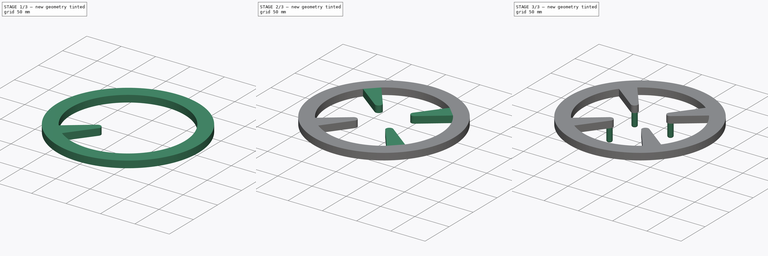
[diagram: build sequence overview — one tinted view per stage of 3, left to right]
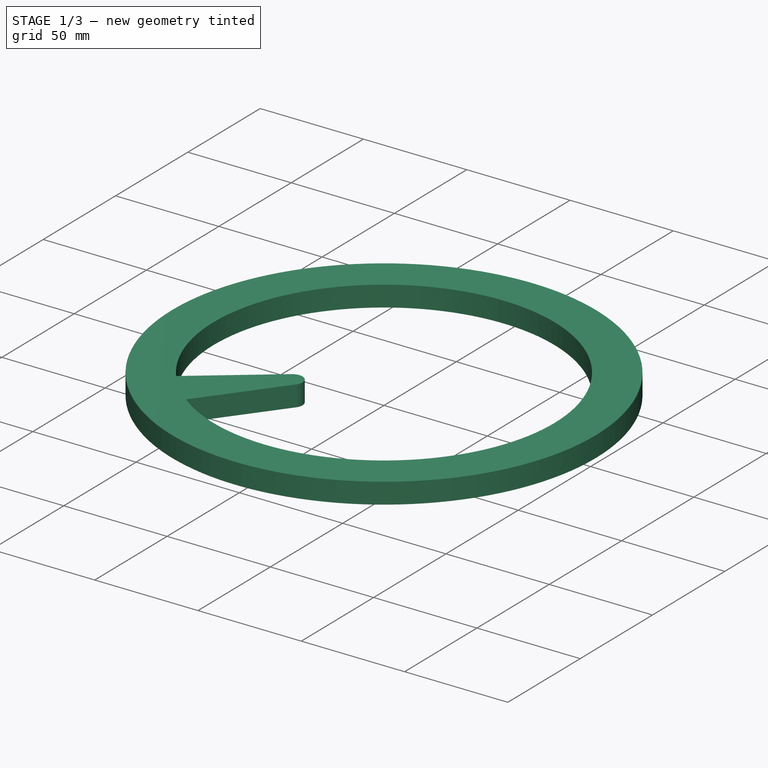
[diagram: stage 1 of 3 — iso view after this stage's code; geometry added in this stage tinted green]
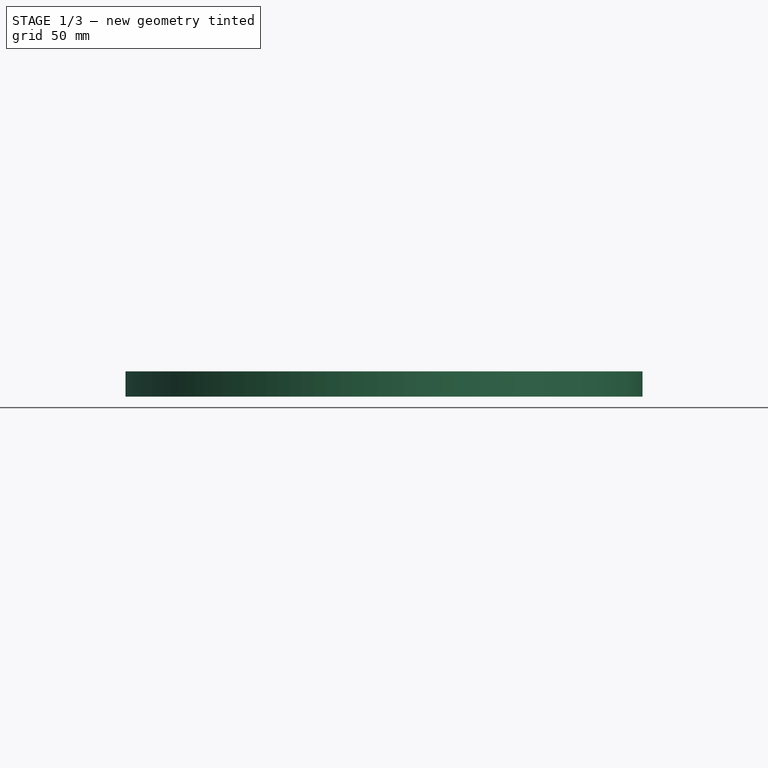
[diagram: stage 1 of 3 — front view after this stage's code; geometry added in this stage tinted green]
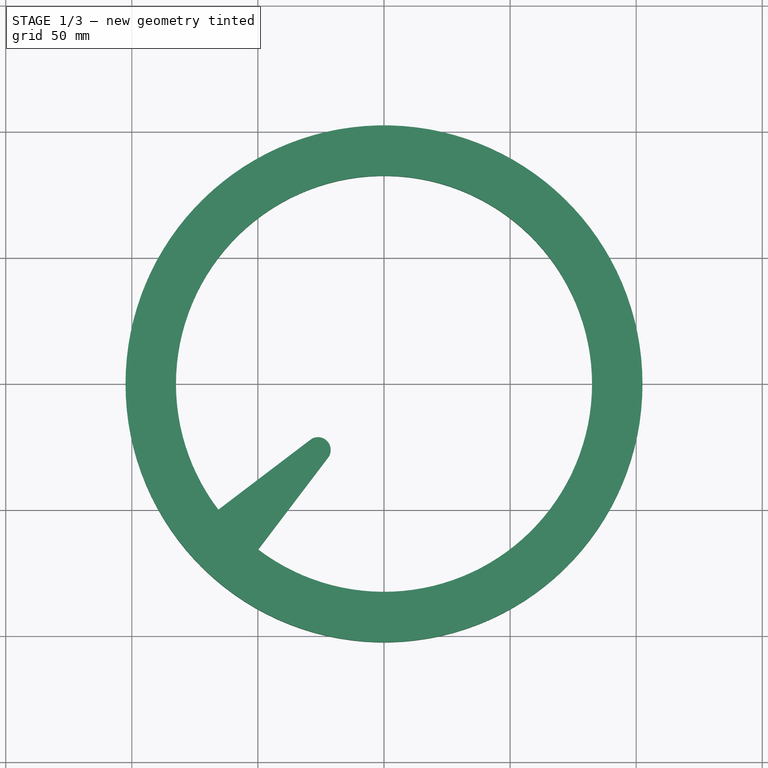
[diagram: stage 1 of 3 — top view after this stage's code; geometry added in this stage tinted green]
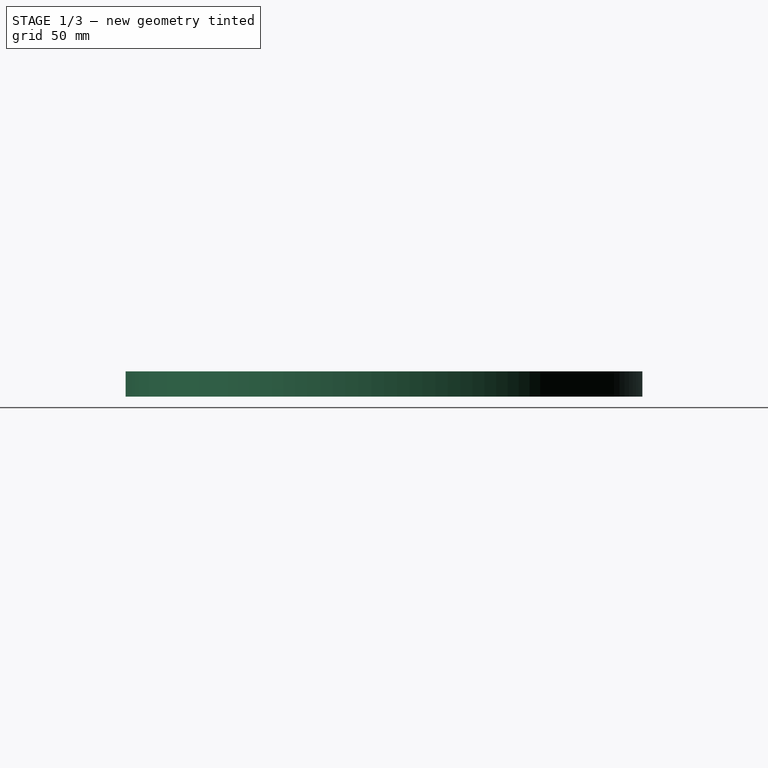
[diagram: stage 1 of 3 — right view after this stage's code; geometry added in this stage tinted green]
FCSTD DOCUMENT  (FreeCAD 1.0R39319 (Git))
Label: Unnamed
License: All rights reserved
LicenseURL: https://en.wikipedia.org/wiki/All_rights_reserved
objects: Sketcher::SketchObject×3, PartDesign::Pad×3, PartDesign::PolarPattern×2, PartDesign::Fillet×1, PartDesign::Body×1
note: 23 computed .brp shape members not serialized (recipe doc carries the construction recipe); baked Part::Feature solids carry a one-line shape summary decoded from their .brp

FEATURE [Sketcher::SketchObject] Sketch
  ArcFitTolerance = 1e-06
  AttachmentSupport = -> [XY_Plane]
  FullyConstrained = false
  MakeInternals = false
  MapMode = 5
  sketch-geometry (14):
    g0: Circle [constr] CenterX=0 CenterY=0 CenterZ=0 NormalX=0 NormalY=0 NormalZ=1 AngleXU=0 Radius=30
    g1: LineSegment [constr] StartX=0 StartY=30 StartZ=0 EndX=0 EndY=80 EndZ=0
    g2: LineSegment [constr] StartX=0 StartY=-30 StartZ=0 EndX=0 EndY=-80 EndZ=0
    g3: Circle CenterX=0 CenterY=0 CenterZ=0 NormalX=0 NormalY=0 NormalZ=1 AngleXU=0 Radius=82.5
    g4: Circle CenterX=0 CenterY=0 CenterZ=0 NormalX=0 NormalY=0 NormalZ=1 AngleXU=0 Radius=102.5
    g5: Circle [constr] CenterX=-26.163 CenterY=26.163 CenterZ=0 NormalX=0 NormalY=0 NormalZ=1 AngleXU=0 Radius=5
    g6: Circle [constr] CenterX=26.163 CenterY=26.163 CenterZ=0 NormalX=0 NormalY=0 NormalZ=1 AngleXU=0 Radius=5
    g7: Circle [constr] CenterX=26.163 CenterY=-26.163 CenterZ=0 NormalX=0 NormalY=0 NormalZ=1 AngleXU=0 Radius=5
    g8: Circle [constr] CenterX=-26.163 CenterY=-26.163 CenterZ=0 NormalX=0 NormalY=0 NormalZ=1 AngleXU=0 Radius=5
    g9: LineSegment [constr] StartX=0 StartY=0 StartZ=0 EndX=85.8181 EndY=85.8181 EndZ=0
    g10: LineSegment [constr] StartX=0 StartY=0 StartZ=0 EndX=-65.6845 EndY=49.9179 EndZ=0
    g11: LineSegment [constr] StartX=0 StartY=0 StartZ=0 EndX=-49.9179 EndY=65.6845 EndZ=0
    g12: GeomPoint [constr] X=21.2132 Y=21.2132 Z=0
    g13: GeomPoint [constr] X=22.6274 Y=22.6274 Z=0
  constraints (35):
    c: Diameter(g0) = 60
    c: Coincident(g0,g-1)
    c: Distance(g1) = 50
    c: PointOnObject(g1,g0)
    c: PointOnObject(g1,g-2)
    c: Vertical(g1)
    c: Distance(g2) = 50
    c: PointOnObject(g2,g0)
    c: PointOnObject(g2,g-2)
    c: Vertical(g2)
    c: Diameter(g3) = 165
    c: Coincident(g3,g0)
    c: Diameter(g4) = 205
    c: Coincident(g4,g0)
    c: Diameter(g5) = 10
    c: Diameter(g6) = 10
    c: Diameter(g7) = 10
    c: Diameter(g8) = 10
    c: Coincident(g9,g0)
    c: Angle(g-1,g9) = 0.785398
    c: PointOnObject(g6,g9)
    c: Symmetric(g7,g8,g2)
    c: Symmetric(g5,g6,g1)
    c: Symmetric(g7,g6,g-1)
    c: Coincident(g10,g0)
    c: PointOnObject(g10,g3)
    c: Coincident(g11,g0)
    c: PointOnObject(g11,g3)
    c: PointOnObject(g12,g0)
    c: PointOnObject(g13,g6)
    c: PointOnObject(g13,g9)
    c: PointOnObject(g12,g9)
    c: Distance(g13,g12) = 2
    c: Tangent(g11,g5)
    c: Tangent(g10,g5)
FEATURE [PartDesign::Pad] Pad
  Direction = (0,0,1)
  Length = 10
  Length2 = 10
  Profile = -> Sketch
  ReferenceAxis = -> Sketch [N_Axis]
  Refine = true
  Suppressed = false
  Type = 0
FEATURE [Sketcher::SketchObject] Sketch001
  ArcFitTolerance = 1e-06
  AttachmentSupport = -> [Pad]
  ExternalGeometry = -> [Pad]
  FullyConstrained = false
  MakeInternals = false
  MapMode = 5
  Placement = pos=(0,0,0) rot=(1,0,0;3.14159rad)
  sketch-geometry (14):
    g0: Circle [constr] CenterX=0 CenterY=0 CenterZ=0 NormalX=0 NormalY=0 NormalZ=1 AngleXU=0 Radius=30
    g1: LineSegment [constr] StartX=0 StartY=0 StartZ=0 EndX=113.285 EndY=113.285 EndZ=0
    g2: Circle [constr] CenterX=26.163 CenterY=26.163 CenterZ=0 NormalX=0 NormalY=0 NormalZ=1 AngleXU=0 Radius=5
    g3: Circle [constr] CenterX=26.163 CenterY=-26.163 CenterZ=0 NormalX=0 NormalY=0 NormalZ=1 AngleXU=0 Radius=5
    g4: Circle [constr] CenterX=-26.163 CenterY=-26.163 CenterZ=0 NormalX=0 NormalY=0 NormalZ=1 AngleXU=0 Radius=5
    g5: Circle [constr] CenterX=-26.163 CenterY=26.163 CenterZ=0 NormalX=0 NormalY=0 NormalZ=1 AngleXU=0 Radius=5
    g6: GeomPoint [constr] X=22.6274 Y=22.6274 Z=0
    g7: GeomPoint [constr] X=21.2132 Y=21.2132 Z=0
    g8: LineSegment [constr] StartX=0 StartY=0 StartZ=0 EndX=-49.9179 EndY=65.6845 EndZ=0
    g9: LineSegment [constr] StartX=0 StartY=0 StartZ=0 EndX=-65.6845 EndY=49.9179 EndZ=0
    g10: LineSegment StartX=-49.9179 StartY=65.6845 StartZ=0 EndX=-22.4041 EndY=29.46 EndZ=0
    g11: LineSegment StartX=-29.2549 StartY=22.2336 StartZ=0 EndX=-65.6845 EndY=49.9179 EndZ=0
    g12: ArcOfCircle CenterX=-26.163 CenterY=26.163 CenterZ=0 NormalX=0 NormalY=0 NormalZ=1 AngleXU=0 Radius=5 StartAngle=4.04569 EndAngle=7.00323
    g13: ArcOfCircle CenterX=0 CenterY=0 CenterZ=0 NormalX=0 NormalY=0 NormalZ=1 AngleXU=0 Radius=82.5 StartAngle=2.22064 EndAngle=2.49174
  constraints (33):
    c: Diameter(g0) = 60
    c: Coincident(g0,g-1)
    c: Coincident(g1,g0)
    c: Angle(g-1,g1) = 0.785398
    c: Diameter(g2) = 10
    c: PointOnObject(g2,g1)
    c: Diameter(g3) = 10
    c: Diameter(g4) = 10
    c: Diameter(g5) = 10
    c: PointOnObject(g6,g2)
    c: PointOnObject(g7,g0)
    c: PointOnObject(g7,g1)
    c: PointOnObject(g6,g1)
    c: Distance(g6,g7) = 2
    c: Symmetric(g2,g3,g-1)
    c: Symmetric(g2,g5,g-2)
    c: Symmetric(g4,g5,g-1)
    c: Coincident(g8,g0)
    c: PointOnObject(g8,g-3)
    c: Tangent(g8,g5)
    c: Coincident(g9,g0)
    c: PointOnObject(g9,g-3)
    c: Tangent(g9,g5)
    c: Coincident(g10,g8)
    c: PointOnObject(g10,g5)
    c: PointOnObject(g11,g5)
    c: Coincident(g11,g9)
    c: Coincident(g12,g5)
    c: Coincident(g12,g11)
    c: Coincident(g12,g10)
    c: Coincident(g13,g0)
    c: Coincident(g13,g8)
    c: Coincident(g13,g9)
FEATURE [PartDesign::Pad] Pad001
  BaseFeature = -> Pad
  Direction = (0,0,-1)
  Length = 10
  Length2 = 10
  Profile = -> Sketch001
  ReferenceAxis = -> Sketch001 [N_Axis]
  Refine = true
  Reversed = true
  Suppressed = false
  Type = 0
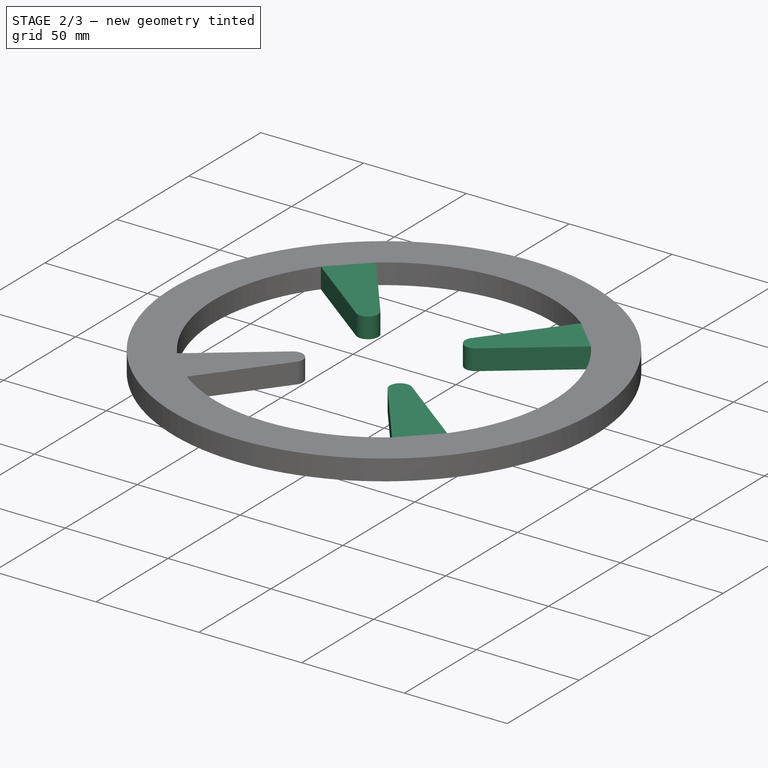
[diagram: stage 2 of 3 — iso view after this stage's code; geometry added in this stage tinted green]
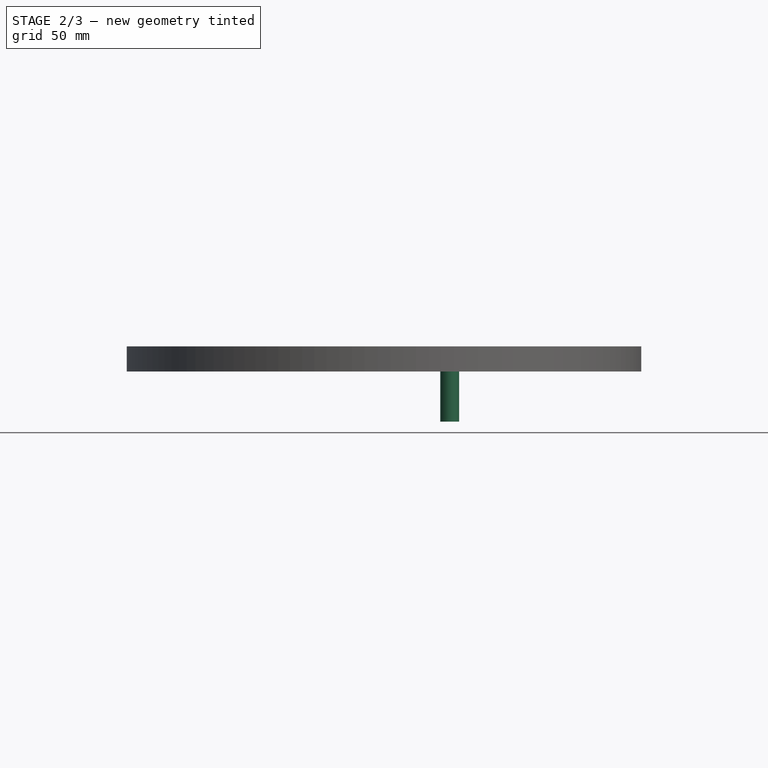
[diagram: stage 2 of 3 — front view after this stage's code; geometry added in this stage tinted green]
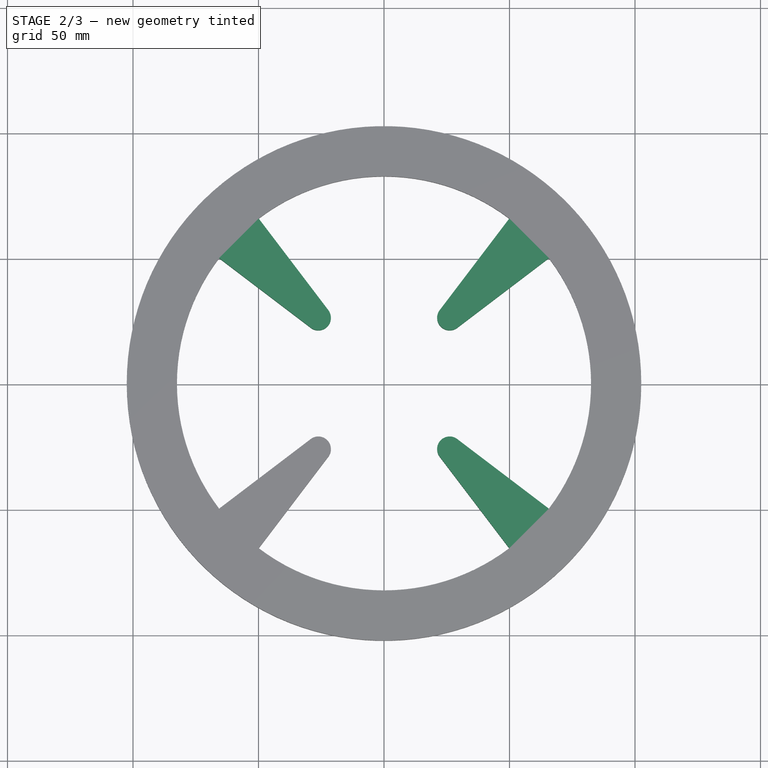
[diagram: stage 2 of 3 — top view after this stage's code; geometry added in this stage tinted green]
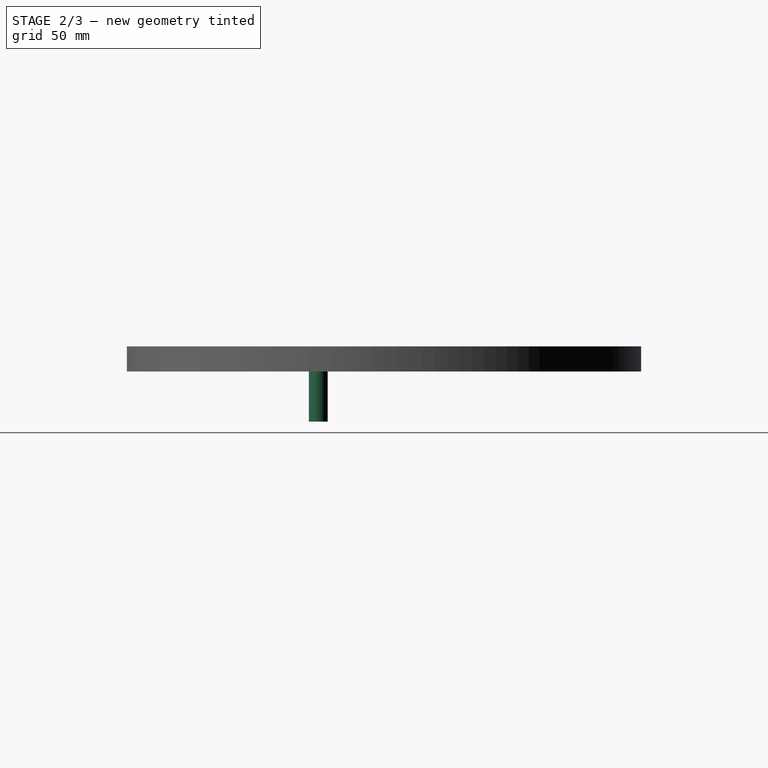
[diagram: stage 2 of 3 — right view after this stage's code; geometry added in this stage tinted green]
FEATURE [PartDesign::PolarPattern] PolarPattern
  Angle = 360
  Axis = -> Sketch001 [N_Axis]
  BaseFeature = -> Pad001
  Mode = 0
  Occurrences = 4
  Offset = 120
  Originals = -> [Pad001]
  Refine = true
  Suppressed = false
  TransformMode = 0
FEATURE [Sketcher::SketchObject] Sketch002
  ArcFitTolerance = 1e-06
  AttachmentSupport = -> [PolarPattern]
  ExternalGeometry = -> [PolarPattern]
  FullyConstrained = true
  MakeInternals = false
  MapMode = 5
  Placement = pos=(0,0,0) rot=(1,0,0;3.14159rad)
  sketch-geometry (1):
    g0: Circle CenterX=26.163 CenterY=26.163 CenterZ=0 NormalX=0 NormalY=0 NormalZ=1 AngleXU=0 Radius=3.75
  constraints (2):
    c: Diameter(g0) = 7.5
    c: Coincident(g0,g-3)
FEATURE [PartDesign::Pad] Pad002
  BaseFeature = -> PolarPattern
  Direction = (0,0,-1)
  Length = 20
  Length2 = 10
  Profile = -> Sketch002
  ReferenceAxis = -> Sketch002 [N_Axis]
  Refine = true
  Suppressed = false
  Type = 0
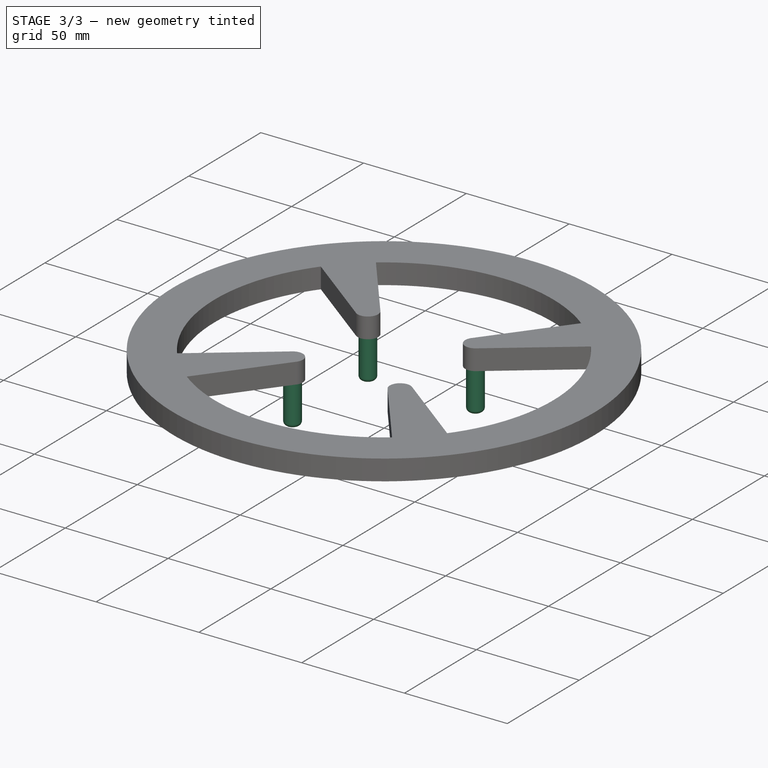
[diagram: stage 3 of 3 — iso view after this stage's code; geometry added in this stage tinted green]
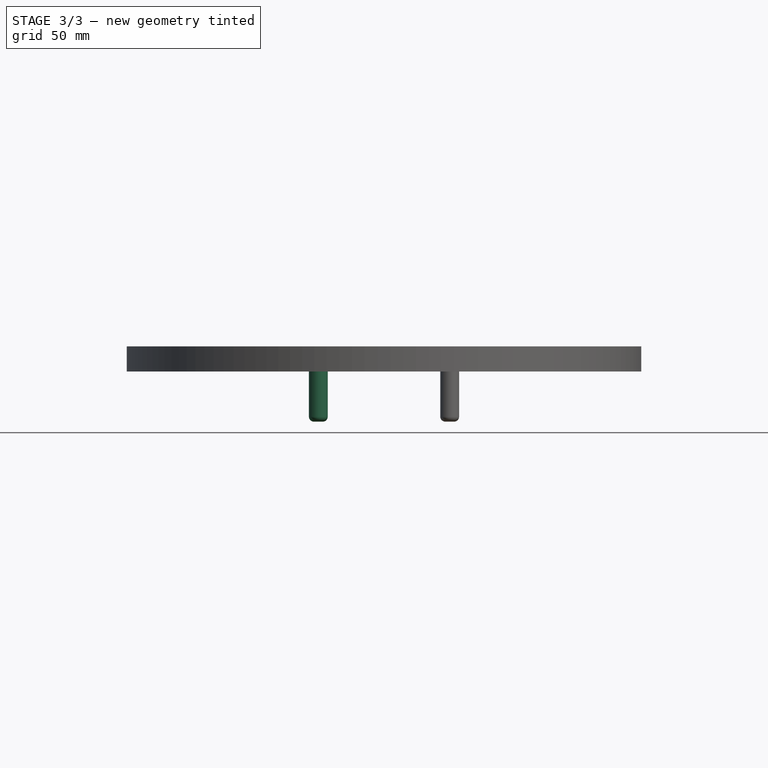
[diagram: stage 3 of 3 — front view after this stage's code; geometry added in this stage tinted green]
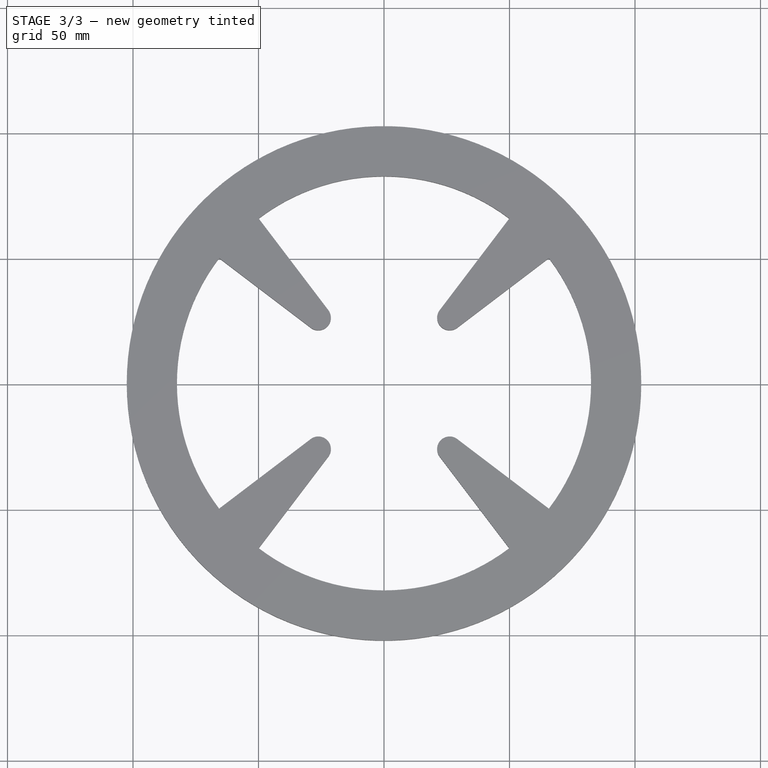
[diagram: stage 3 of 3 — top view after this stage's code; geometry added in this stage tinted green]
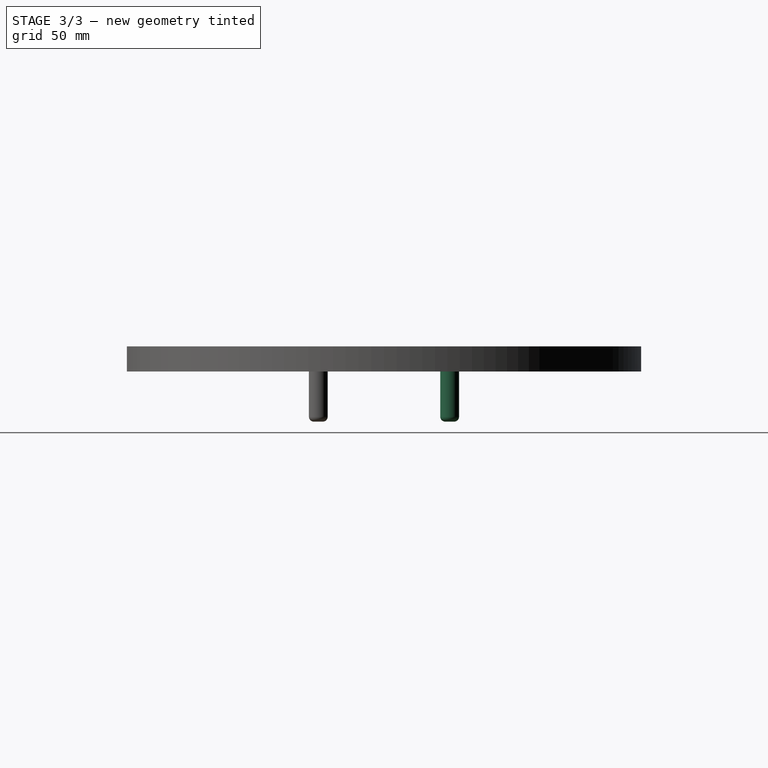
[diagram: stage 3 of 3 — right view after this stage's code; geometry added in this stage tinted green]
FEATURE [PartDesign::Fillet] Fillet
  Base = -> Pad002 [Edge40]
  BaseFeature = -> Pad002
  Radius = 2
  Refine = true
  SupportTransform = false
  Suppressed = false
  UseAllEdges = false
FEATURE [PartDesign::PolarPattern] PolarPattern001
  Angle = 360
  Axis = -> Sketch002 [N_Axis]
  BaseFeature = -> Fillet
  Mode = 0
  Occurrences = 4
  Offset = 120
  Originals = -> [Pad002,Fillet]
  Refine = true
  Suppressed = false
  TransformMode = 0
FEATURE [PartDesign::Body] Body
  AllowCompound = false
  Group = -> [Sketch,Pad,Sketch001,Pad001,PolarPattern,Sketch002,Pad002,Fillet,PolarPattern001]
  Origin = -> Origin
  Tip = -> PolarPattern001
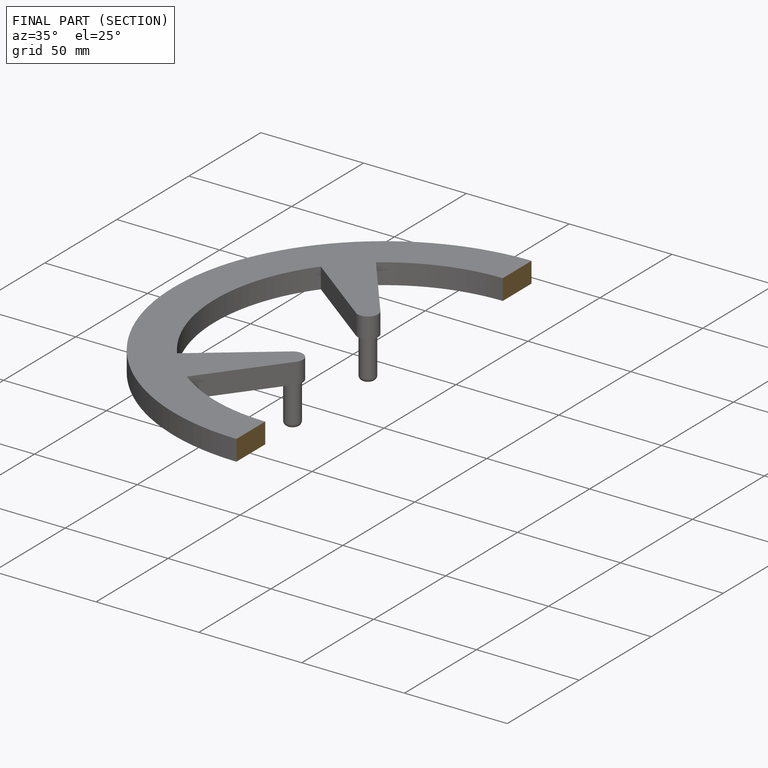
[diagram: finished part — half-section view (interior)]
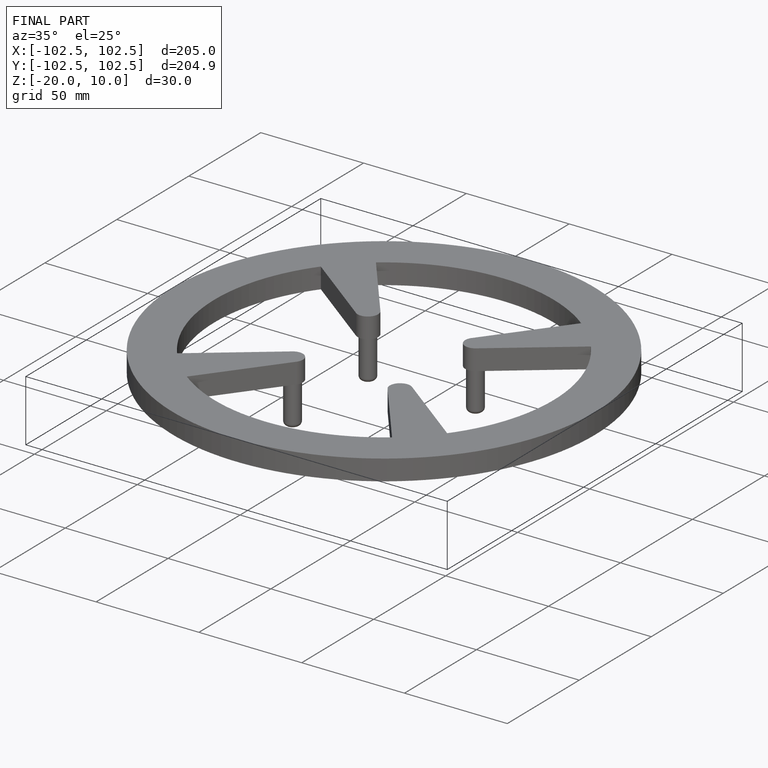
[diagram: finished part — iso view with bounding-box wireframe]
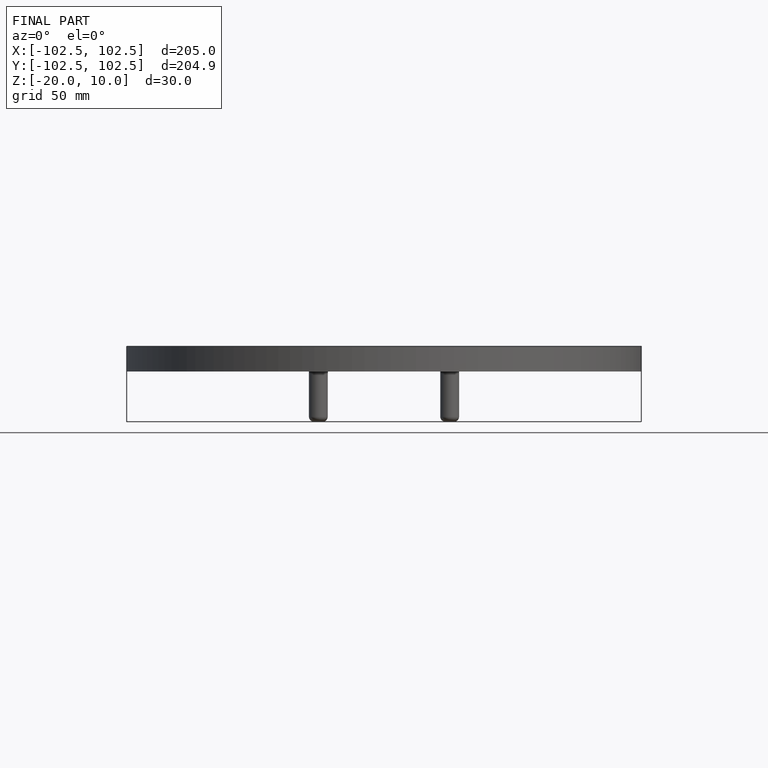
[diagram: finished part — front view with bounding-box wireframe]
